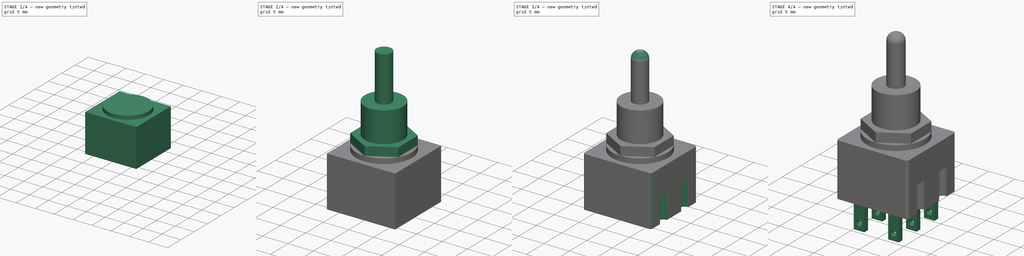
[diagram: build sequence overview — one tinted view per stage of 4, left to right]
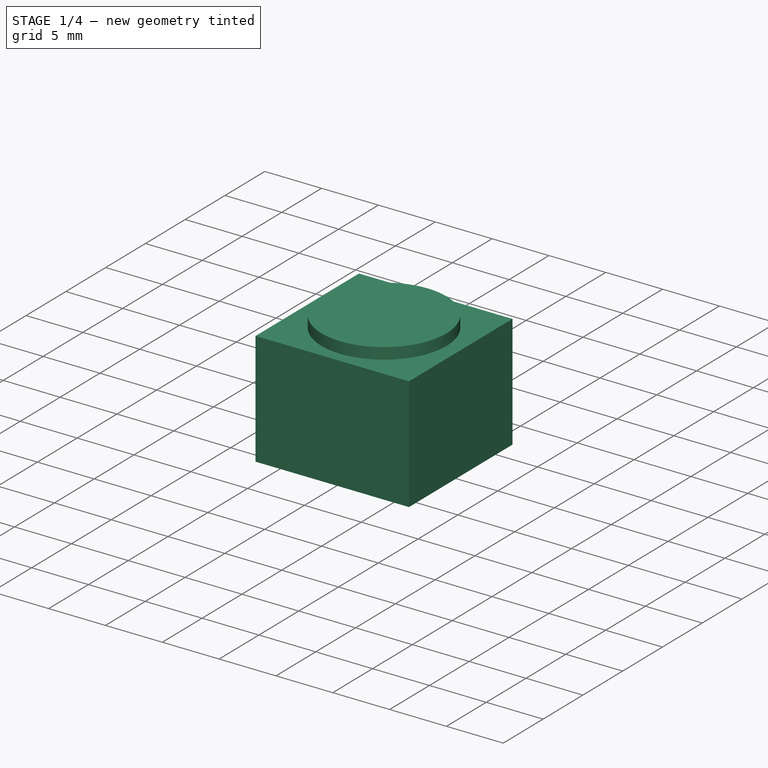
[diagram: stage 1 of 4 — iso view after this stage's code; geometry added in this stage tinted green]
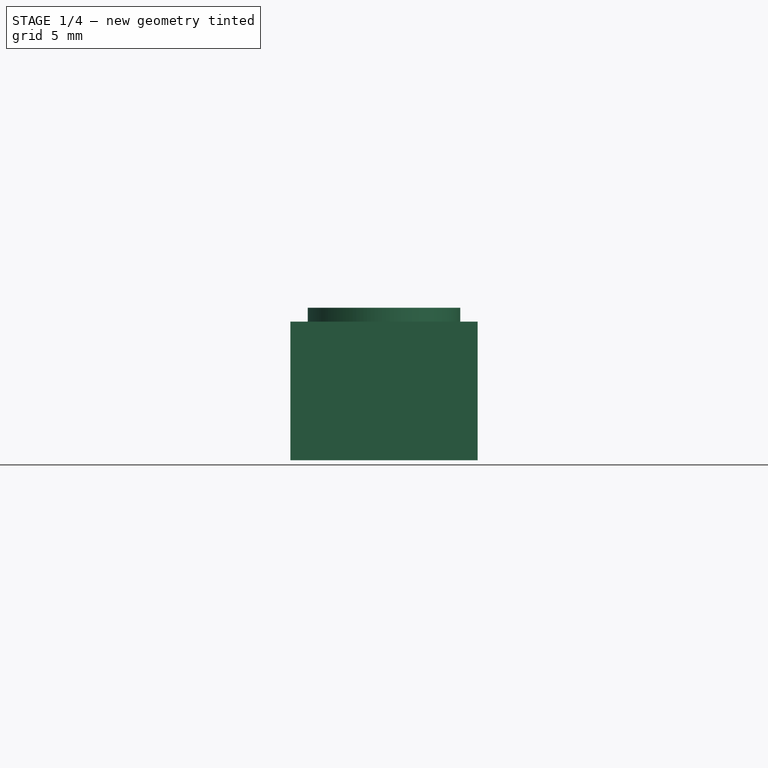
[diagram: stage 1 of 4 — front view after this stage's code; geometry added in this stage tinted green]
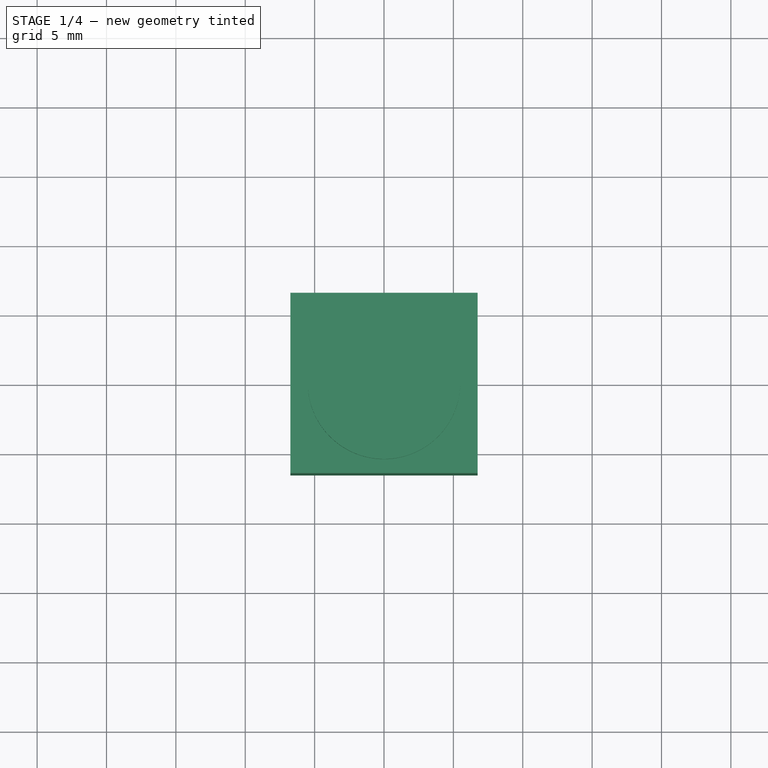
[diagram: stage 1 of 4 — top view after this stage's code; geometry added in this stage tinted green]
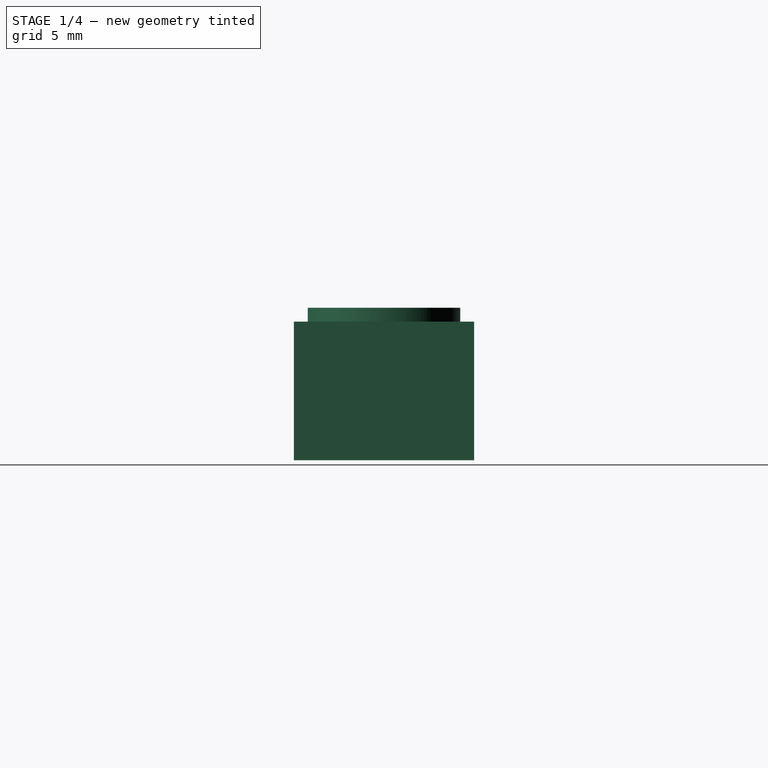
[diagram: stage 1 of 4 — right view after this stage's code; geometry added in this stage tinted green]
FCSTD DOCUMENT  (FreeCAD 1.0R39109 (Git))
Label: switch_3s_6a
License: All rights reserved
LicenseURL: https://en.wikipedia.org/wiki/All_rights_reserved
objects: Sketcher::SketchObject×8, PartDesign::Pad×6, PartDesign::Fillet×2, PartDesign::Pocket×2, PartDesign::Body×1
note: 47 computed .brp shape members not serialized (recipe doc carries the construction recipe); baked Part::Feature solids carry a one-line shape summary decoded from their .brp

FEATURE [Sketcher::SketchObject] Sketch
  ArcFitTolerance = 1e-06
  AttachmentSupport = -> [XY_Plane]
  FullyConstrained = true
  MakeInternals = false
  MapMode = 5
  sketch-geometry (5):
    g0: LineSegment StartX=-6.75 StartY=6.5 StartZ=0 EndX=-6.75 EndY=-6.5 EndZ=0
    g1: LineSegment StartX=-6.75 StartY=-6.5 StartZ=0 EndX=6.75 EndY=-6.5 EndZ=0
    g2: LineSegment StartX=6.75 StartY=-6.5 StartZ=0 EndX=6.75 EndY=6.5 EndZ=0
    g3: LineSegment StartX=6.75 StartY=6.5 StartZ=0 EndX=-6.75 EndY=6.5 EndZ=0
    g4: GeomPoint [constr] X=0 Y=0 Z=0
  constraints (12):
    c: Coincident(g0,g1)
    c: Coincident(g1,g2)
    c: Coincident(g2,g3)
    c: Coincident(g3,g0)
    c: Vertical(g0)
    c: Vertical(g2)
    c: Horizontal(g1)
    c: Horizontal(g3)
    c: Symmetric(g2,g0,g4)
    c: Coincident(g4,g-1)
    c: DistanceX(g3,g3) = 13.5
    c: DistanceY(g2,g2) = 13
FEATURE [PartDesign::Pad] Pad  label="BAsePad"
  Direction = (0,0,1)
  Length = 10
  Length2 = 10
  Profile = -> Sketch
  ReferenceAxis = -> Sketch [N_Axis]
  Refine = true
  Suppressed = false
  Type = 0
FEATURE [Sketcher::SketchObject] Sketch001
  ArcFitTolerance = 1e-06
  AttachmentSupport = -> [Pad]
  FullyConstrained = true
  MakeInternals = false
  MapMode = 5
  Placement = pos=(0,0,10) rot=(0,0,1;0rad)
  sketch-geometry (1):
    g0: Circle CenterX=0 CenterY=0 CenterZ=0 NormalX=0 NormalY=0 NormalZ=1 AngleXU=0 Radius=5.5
  constraints (2):
    c: Coincident(g0,g-1)
    c: Radius(g0) = 5.5
FEATURE [PartDesign::Pad] Pad001  label="BaseSWitchPad"
  BaseFeature = -> Pad
  Direction = (0,0,1)
  Length = 1
  Length2 = 10
  Profile = -> Sketch001
  ReferenceAxis = -> Sketch001 [N_Axis]
  Refine = true
  Suppressed = false
  Type = 0
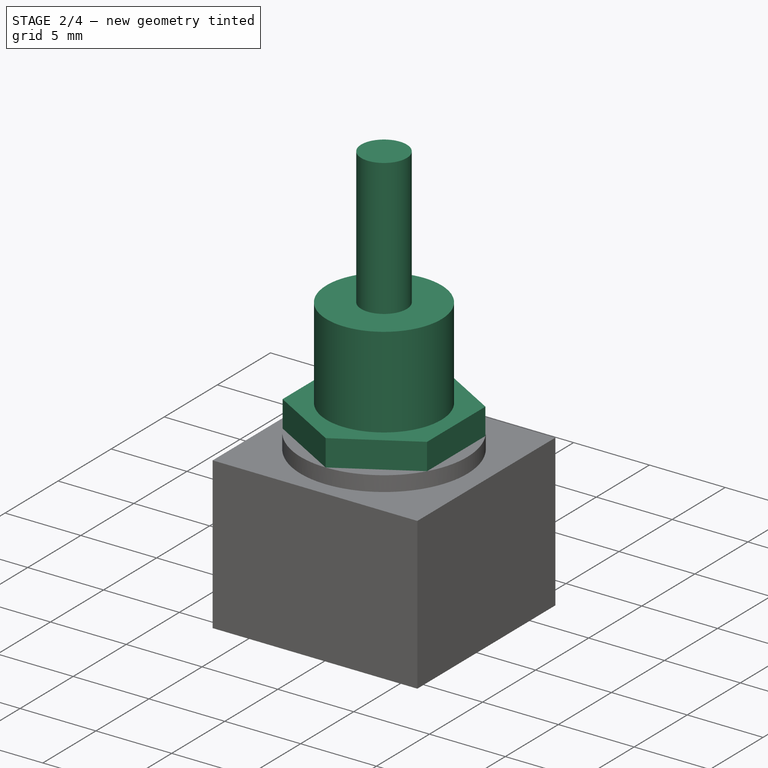
[diagram: stage 2 of 4 — iso view after this stage's code; geometry added in this stage tinted green]
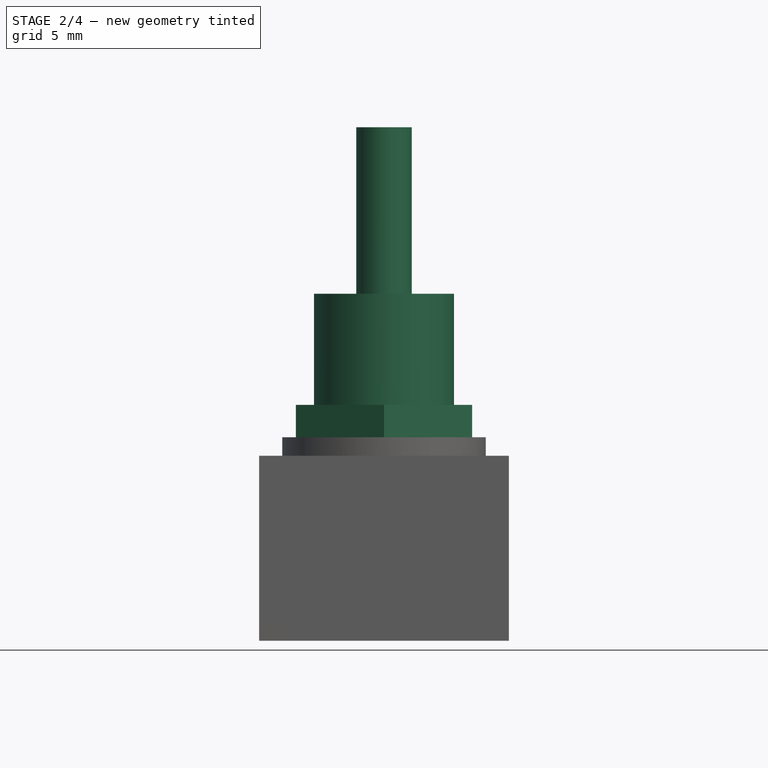
[diagram: stage 2 of 4 — front view after this stage's code; geometry added in this stage tinted green]
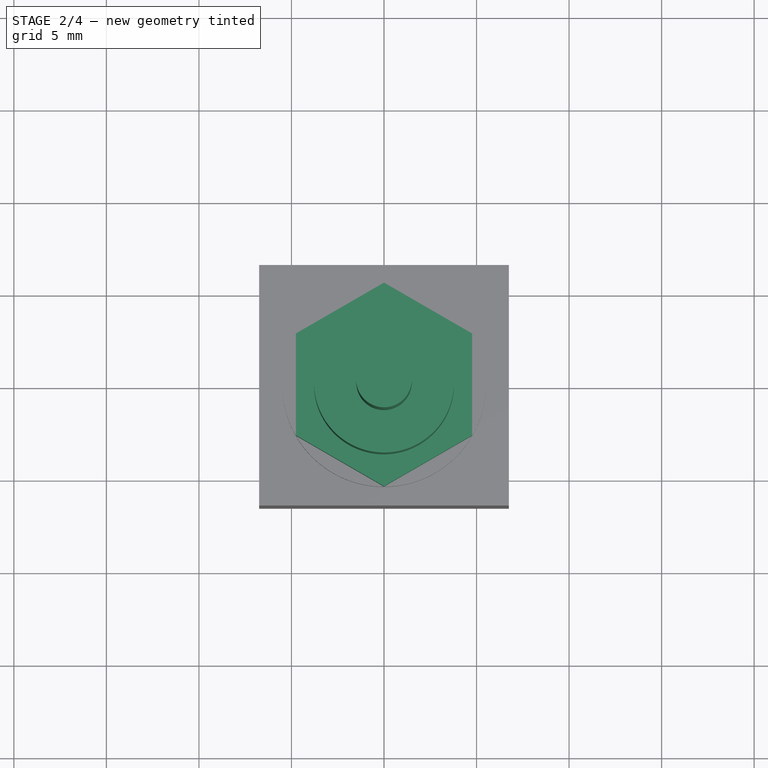
[diagram: stage 2 of 4 — top view after this stage's code; geometry added in this stage tinted green]
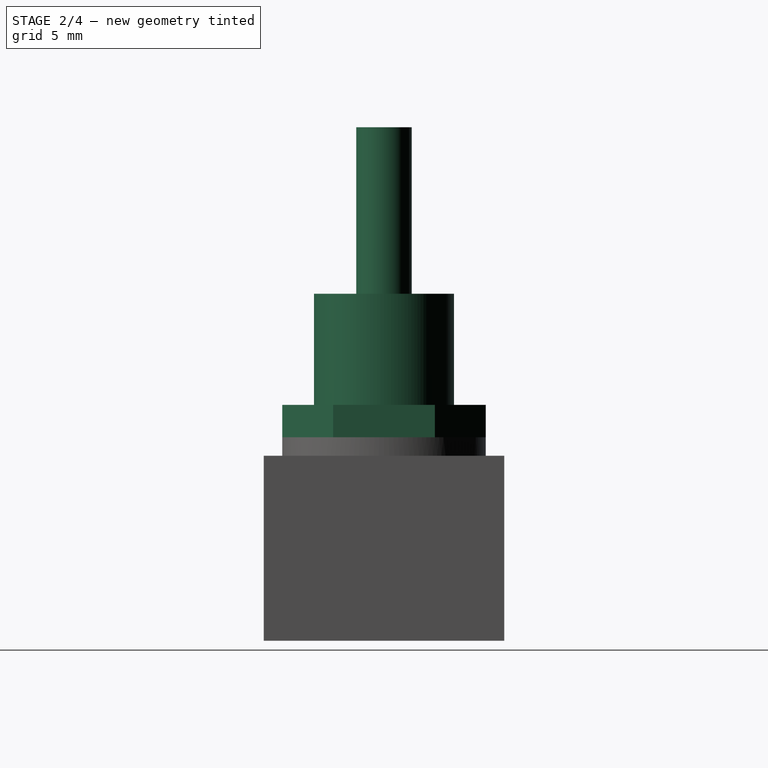
[diagram: stage 2 of 4 — right view after this stage's code; geometry added in this stage tinted green]
FEATURE [Sketcher::SketchObject] Sketch002
  ArcFitTolerance = 1e-06
  AttachmentSupport = -> [Pad001]
  ExternalGeometry = -> [Pad001]
  FullyConstrained = true
  MakeInternals = false
  MapMode = 5
  Placement = pos=(0,0,11) rot=(0,0,1;0rad)
  sketch-geometry (7):
    g0: LineSegment StartX=4.76314 StartY=-2.75 StartZ=0 EndX=4.76314 EndY=2.75 EndZ=0
    g1: LineSegment StartX=4.76314 StartY=2.75 StartZ=0 EndX=-1.87e-14 EndY=5.5 EndZ=0
    g2: LineSegment StartX=-1.85e-14 StartY=5.5 StartZ=0 EndX=-4.76314 EndY=2.75 EndZ=0
    g3: LineSegment StartX=-4.76314 StartY=2.75 StartZ=0 EndX=-4.76314 EndY=-2.75 EndZ=0
    g4: LineSegment StartX=-4.76314 StartY=-2.75 StartZ=0 EndX=5.3e-15 EndY=-5.5 EndZ=0
    g5: LineSegment StartX=5.4e-15 StartY=-5.5 StartZ=0 EndX=4.76314 EndY=-2.75 EndZ=0
    g6: Circle [constr] CenterX=0 CenterY=0 CenterZ=0 NormalX=0 NormalY=0 NormalZ=1 AngleXU=0 Radius=5.5
  constraints (16):
    c: Coincident(g0,g1)
    c: Coincident(g1,g2)
    c: Coincident(g2,g3)
    c: Coincident(g3,g4)
    c: Coincident(g4,g5)
    c: Coincident(g5,g0)
    c: Equal(g0, g1-g5) x5
    c: PointOnObject(g0,g6)
    c: PointOnObject(g1,g6)
    c: PointOnObject(g2,g6)
    c: PointOnObject(g3,g6)
    c: PointOnObject(g4,g6)
    c: PointOnObject(g5,g6)
    c: Coincident(g6,g-1)
    c: Vertical(g0)
    c: PointOnObject(g0,g-3)
FEATURE [PartDesign::Pad] Pad002  label="NutPad"
  BaseFeature = -> Pad001
  Direction = (0,0,1)
  Length = 1.75
  Length2 = 10
  Profile = -> Sketch002
  ReferenceAxis = -> Sketch002 [N_Axis]
  Refine = true
  Suppressed = false
  Type = 0
FEATURE [Sketcher::SketchObject] Sketch003
  ArcFitTolerance = 1e-06
  AttachmentSupport = -> [Pad002]
  FullyConstrained = true
  MakeInternals = false
  MapMode = 5
  Placement = pos=(0,0,12.75) rot=(0,0,1;0rad)
  sketch-geometry (1):
    g0: Circle CenterX=0 CenterY=0 CenterZ=0 NormalX=0 NormalY=0 NormalZ=1 AngleXU=0 Radius=3.785
  constraints (2):
    c: Coincident(g0,g-1)
    c: Radius(g0) = 3.785
FEATURE [PartDesign::Pad] Pad003  label="SwitchExtensionPad"
  BaseFeature = -> Pad002
  Direction = (0,0,1)
  Length = 6
  Length2 = 10
  Profile = -> Sketch003
  ReferenceAxis = -> Sketch003 [N_Axis]
  Refine = true
  Suppressed = false
  Type = 0
FEATURE [Sketcher::SketchObject] Sketch004
  ArcFitTolerance = 1e-06
  AttachmentSupport = -> [Pad003]
  FullyConstrained = true
  MakeInternals = false
  MapMode = 5
  Placement = pos=(0,0,18.75) rot=(0,0,1;0rad)
  sketch-geometry (1):
    g0: Circle CenterX=0 CenterY=0 CenterZ=0 NormalX=0 NormalY=0 NormalZ=1 AngleXU=0 Radius=1.5
  constraints (2):
    c: Coincident(g0,g-1)
    c: Radius(g0) = 1.5
FEATURE [PartDesign::Pad] Pad004  label="SwitchExtensionPad2"
  BaseFeature = -> Pad003
  Direction = (0,0,1)
  Length = 9
  Length2 = 10
  Profile = -> Sketch004
  ReferenceAxis = -> Sketch004 [N_Axis]
  Refine = true
  Suppressed = false
  Type = 0
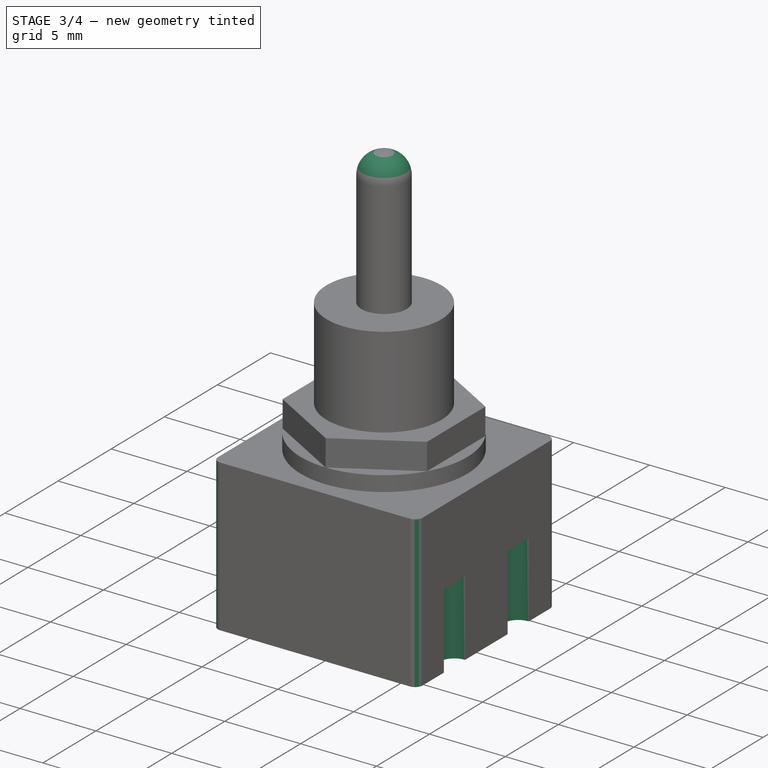
[diagram: stage 3 of 4 — iso view after this stage's code; geometry added in this stage tinted green]
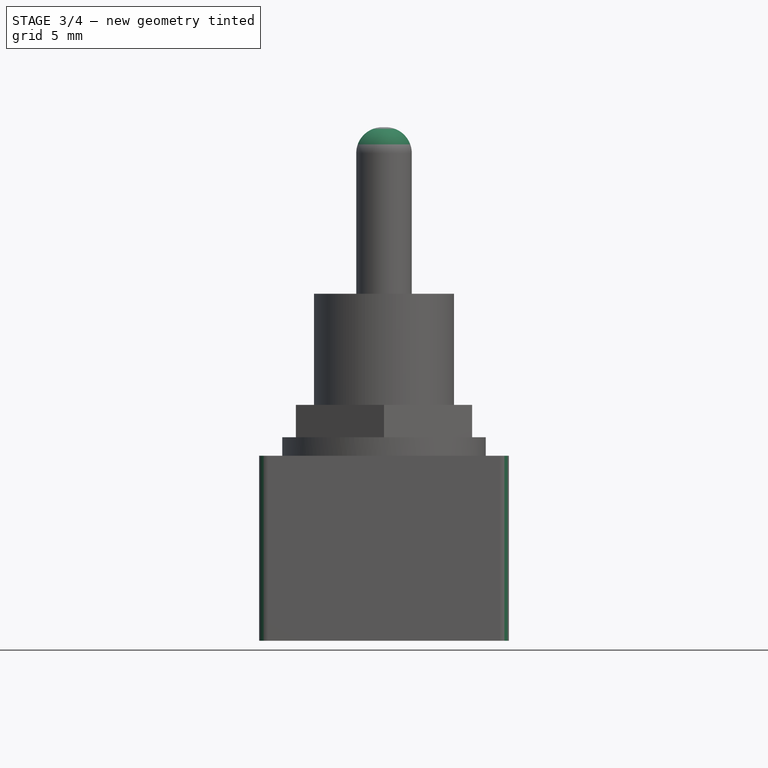
[diagram: stage 3 of 4 — front view after this stage's code; geometry added in this stage tinted green]
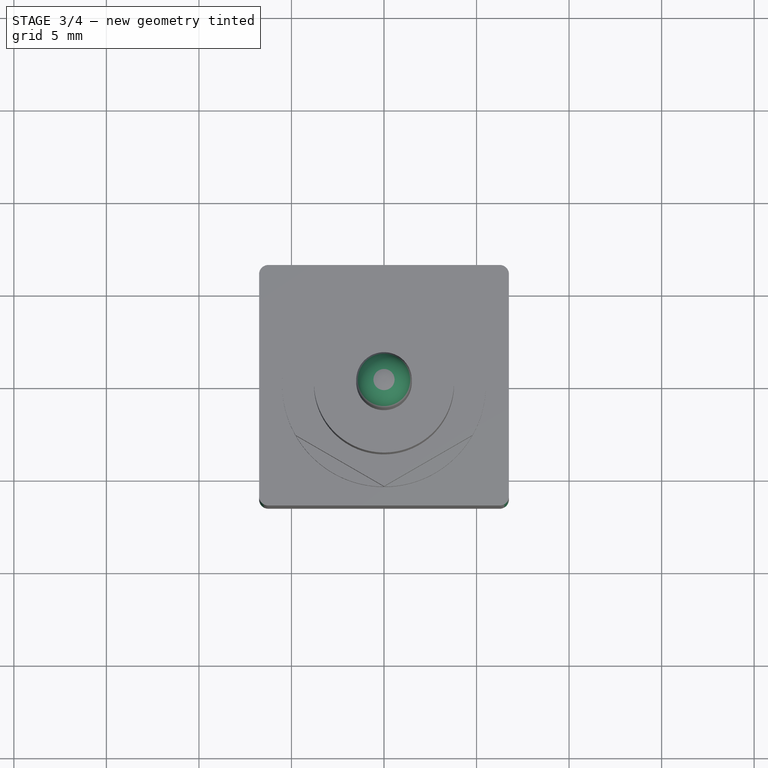
[diagram: stage 3 of 4 — top view after this stage's code; geometry added in this stage tinted green]
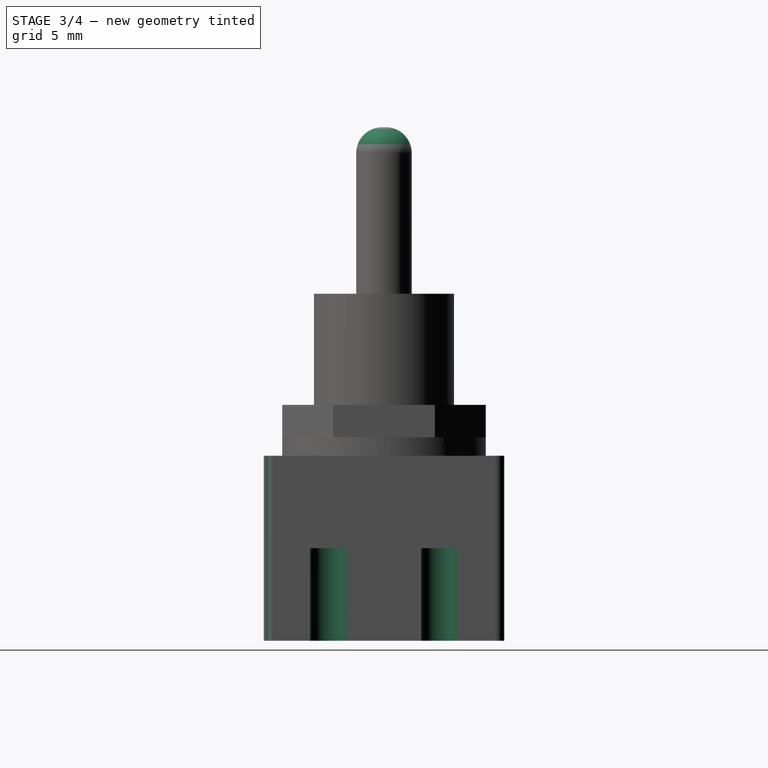
[diagram: stage 3 of 4 — right view after this stage's code; geometry added in this stage tinted green]
FEATURE [PartDesign::Fillet] Fillet  label="SwitchExtensionFillet"
  Base = -> Pad004 [Edge45]
  BaseFeature = -> Pad004
  Radius = 1.4
  Refine = true
  SupportTransform = false
  Suppressed = false
  UseAllEdges = false
FEATURE [PartDesign::Fillet] Fillet001  label="BaseFillet"
  Base = -> Fillet [Edge43,Edge45,Edge41,Edge40]
  BaseFeature = -> Fillet
  Radius = 0.5
  Refine = true
  SupportTransform = false
  Suppressed = false
  UseAllEdges = false
FEATURE [Sketcher::SketchObject] Sketch005
  ArcFitTolerance = 1e-06
  AttachmentSupport = -> [Fillet001]
  ExternalGeometry = -> [Fillet001]
  FullyConstrained = true
  MakeInternals = false
  MapMode = 5
  Placement = pos=(0,0,0) rot=(1,0,0;3.14159rad)
  sketch-geometry (10):
    g0: ArcOfCircle CenterX=-6.75 CenterY=3 CenterZ=0 NormalX=0 NormalY=0 NormalZ=1 AngleXU=0 Radius=1 StartAngle=4.71239 EndAngle=7.85398
    g1: LineSegment StartX=-6.75 StartY=4 StartZ=0 EndX=-6.75 EndY=2 EndZ=0
    g2: LineSegment [constr] StartX=0 StartY=0 StartZ=0 EndX=-5e-16 EndY=6 EndZ=0
    g3: GeomPoint X=-3e-16 Y=3 Z=0
    g4: ArcOfCircle CenterX=6.75 CenterY=3 CenterZ=0 NormalX=0 NormalY=0 NormalZ=1 AngleXU=0 Radius=1 StartAngle=1.57081 EndAngle=4.71239
    g5: LineSegment StartX=6.74999 StartY=4 StartZ=0 EndX=6.75 EndY=2 EndZ=0
    g6: ArcOfCircle CenterX=-6.75 CenterY=-3 CenterZ=0 NormalX=0 NormalY=0 NormalZ=1 AngleXU=0 Radius=1 StartAngle=4.71239 EndAngle=7.85398
    g7: LineSegment StartX=-6.75 StartY=-4 StartZ=0 EndX=-6.75 EndY=-2 EndZ=0
    g8: ArcOfCircle CenterX=6.75 CenterY=-3 CenterZ=0 NormalX=0 NormalY=0 NormalZ=1 AngleXU=0 Radius=1 StartAngle=1.5708 EndAngle=4.71239
    g9: LineSegment StartX=6.75 StartY=-4 StartZ=0 EndX=6.75 EndY=-2 EndZ=0
  constraints (25):
    c: PointOnObject(g0,g-3)
    c: PointOnObject(g0,g-3)
    c: PointOnObject(g0,g-3)
    c: Coincident(g1,g0)
    c: Coincident(g1,g0)
    c: Coincident(g2,g-1)
    c: Horizontal(g2,g-3)
    c: Symmetric(g2,g2,g3)
    c: Radius(g0) = 1
    c: Coincident(g5,g4)
    c: Coincident(g5,g4)
    c: Coincident(g7,g6)
    c: Coincident(g7,g6)
    c: Coincident(g9,g8)
    c: Coincident(g9,g8)
    c: Symmetric(g4,g0,g3)
    c: Symmetric(g8,g6,g-2)
    c: Symmetric(g6,g0,g-1)
    c: Symmetric(g8,g4,g-1)
    c: Symmetric(g4,g6,g2)
    c: Symmetric(g8,g0,g2)
    c: Symmetric(g6,g0,g-1)
    c: Vertical(g6,g0)
    c: Vertical(g4,g8)
    c: Horizontal(g4,g0)
FEATURE [PartDesign::Pocket] Pocket  label="BasePocket"
  BaseFeature = -> Fillet001
  Direction = (0,0,1)
  Length = 5
  Length2 = 5
  Profile = -> Sketch005
  ReferenceAxis = -> Sketch005 [N_Axis]
  Refine = true
  Suppressed = false
  Type = 0
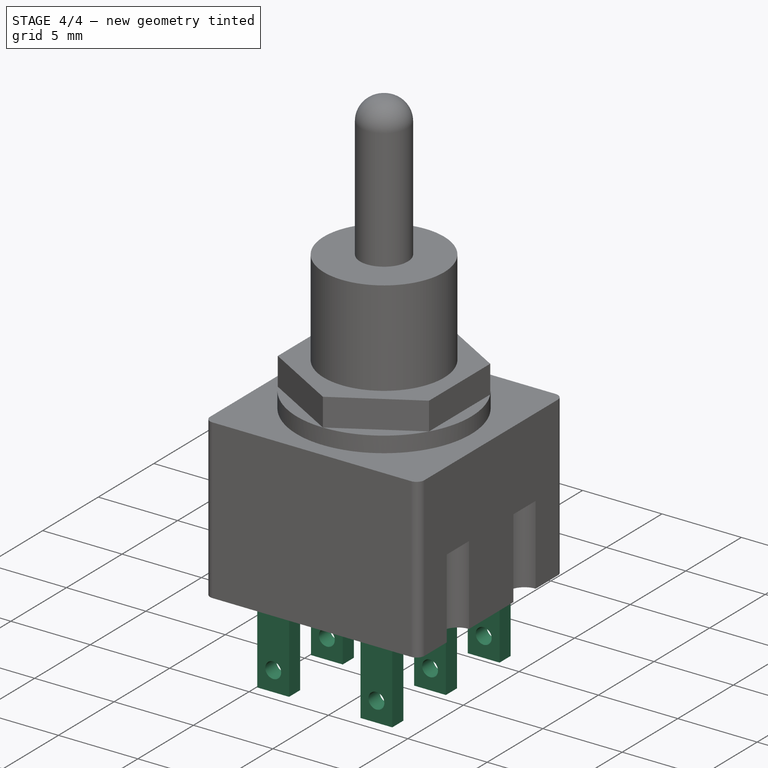
[diagram: stage 4 of 4 — iso view after this stage's code; geometry added in this stage tinted green]
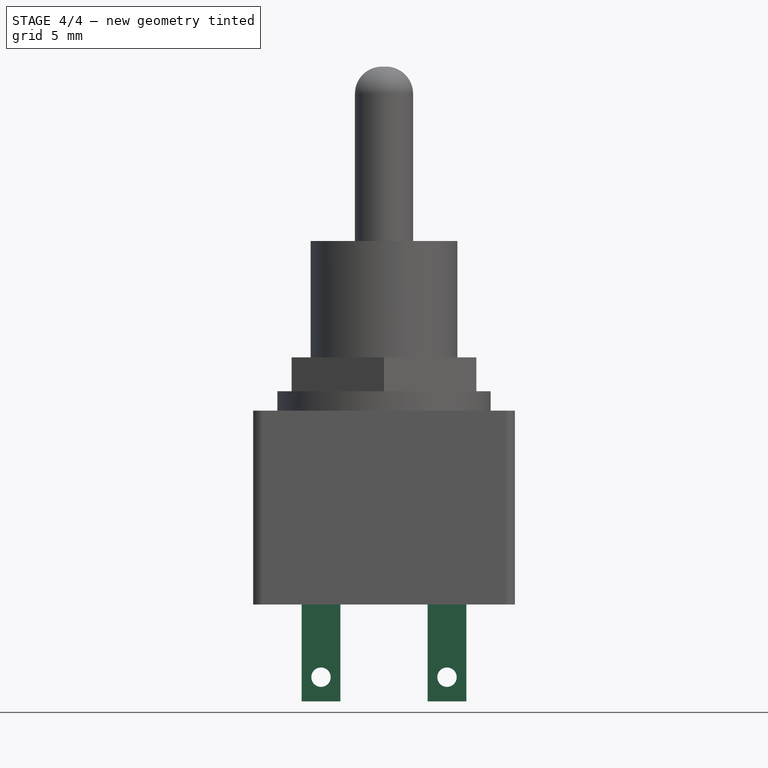
[diagram: stage 4 of 4 — front view after this stage's code; geometry added in this stage tinted green]
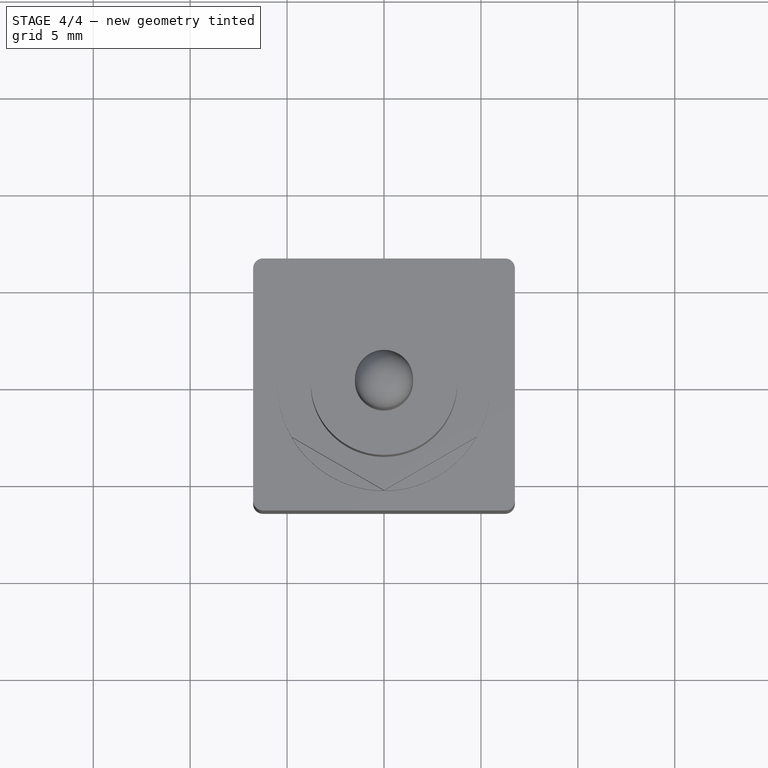
[diagram: stage 4 of 4 — top view after this stage's code; geometry added in this stage tinted green]
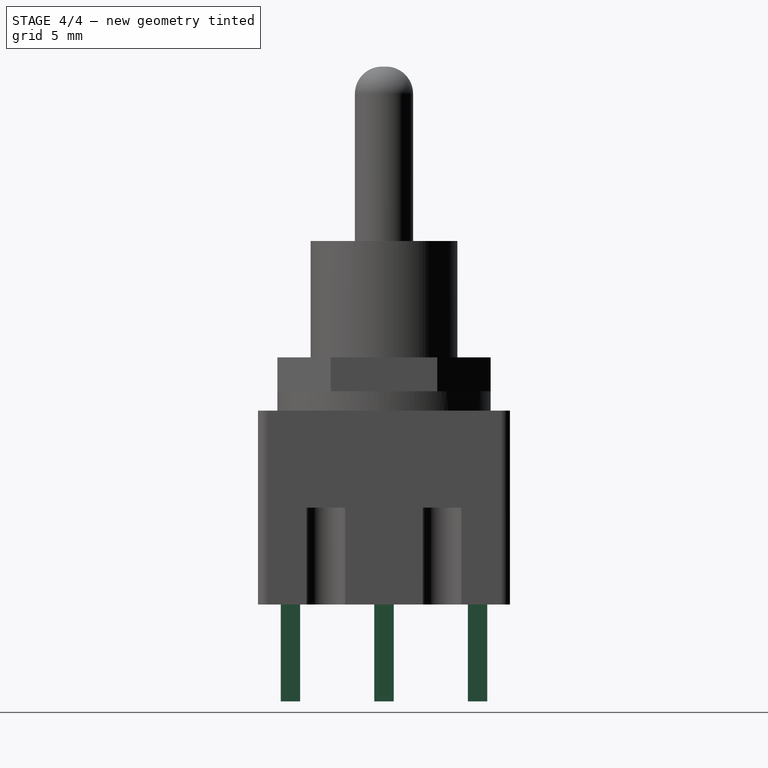
[diagram: stage 4 of 4 — right view after this stage's code; geometry added in this stage tinted green]
FEATURE [Sketcher::SketchObject] Sketch006
  ArcFitTolerance = 1e-06
  AttachmentSupport = -> [Pocket]
  FullyConstrained = true
  MakeInternals = false
  MapMode = 5
  Placement = pos=(0,0,0) rot=(1,0,0;3.14159rad)
  sketch-geometry (30):
    g0: LineSegment StartX=-4.25 StartY=5.325 StartZ=0 EndX=-4.25 EndY=4.325 EndZ=0
    g1: LineSegment StartX=-4.25 StartY=4.325 StartZ=0 EndX=-2.25 EndY=4.325 EndZ=0
    g2: LineSegment StartX=-2.25 StartY=4.325 StartZ=0 EndX=-2.25 EndY=5.325 EndZ=0
    g3: LineSegment StartX=-2.25 StartY=5.325 StartZ=0 EndX=-4.25 EndY=5.325 EndZ=0
    g4: GeomPoint [constr] X=-3.25 Y=4.825 Z=0
    g5: LineSegment StartX=-4.25 StartY=0.5 StartZ=0 EndX=-4.25 EndY=-0.5 EndZ=0
    g6: LineSegment StartX=-4.25 StartY=-0.5 StartZ=0 EndX=-2.25 EndY=-0.5 EndZ=0
    g7: LineSegment StartX=-2.25 StartY=-0.5 StartZ=0 EndX=-2.25 EndY=0.5 EndZ=0
    g8: LineSegment StartX=-2.25 StartY=0.5 StartZ=0 EndX=-4.25 EndY=0.5 EndZ=0
    g9: GeomPoint [constr] X=-3.25 Y=0 Z=0
    g10: LineSegment StartX=-4.25 StartY=-5.325 StartZ=0 EndX=-4.25 EndY=-4.325 EndZ=0
    g11: LineSegment StartX=-4.25 StartY=-4.325 StartZ=0 EndX=-2.25 EndY=-4.325 EndZ=0
    g12: LineSegment StartX=-2.25 StartY=-4.325 StartZ=0 EndX=-2.25 EndY=-5.325 EndZ=0
    g13: LineSegment StartX=-2.25 StartY=-5.325 StartZ=0 EndX=-4.25 EndY=-5.325 EndZ=0
    g14: GeomPoint [constr] X=-3.25 Y=-4.825 Z=0
    g15: LineSegment StartX=4.25 StartY=5.325 StartZ=0 EndX=4.25 EndY=4.325 EndZ=0
    g16: LineSegment StartX=4.25 StartY=4.325 StartZ=0 EndX=2.25 EndY=4.325 EndZ=0
    g17: LineSegment StartX=2.25 StartY=4.325 StartZ=0 EndX=2.25 EndY=5.325 EndZ=0
    g18: LineSegment StartX=2.25 StartY=5.325 StartZ=0 EndX=4.25 EndY=5.325 EndZ=0
    g19: GeomPoint [constr] X=3.25 Y=4.825 Z=0
    g20: LineSegment StartX=4.25 StartY=0.5 StartZ=0 EndX=4.25 EndY=-0.5 EndZ=0
    g21: LineSegment StartX=4.25 StartY=-0.5 StartZ=0 EndX=2.25 EndY=-0.5 EndZ=0
    g22: LineSegment StartX=2.25 StartY=-0.5 StartZ=0 EndX=2.25 EndY=0.5 EndZ=0
    g23: LineSegment StartX=2.25 StartY=0.5 StartZ=0 EndX=4.25 EndY=0.5 EndZ=0
    g24: GeomPoint [constr] X=3.25 Y=3e-16 Z=0
    g25: LineSegment StartX=4.25 StartY=-5.325 StartZ=0 EndX=4.25 EndY=-4.325 EndZ=0
    g26: LineSegment StartX=4.25 StartY=-4.325 StartZ=0 EndX=2.25 EndY=-4.325 EndZ=0
    g27: LineSegment StartX=2.25 StartY=-4.325 StartZ=0 EndX=2.25 EndY=-5.325 EndZ=0
    g28: LineSegment StartX=2.25 StartY=-5.325 StartZ=0 EndX=4.25 EndY=-5.325 EndZ=0
    g29: GeomPoint [constr] X=3.25 Y=-4.825 Z=0
  constraints (70):
    c: Coincident(g0,g1)
    c: Coincident(g1,g2)
    c: Coincident(g2,g3)
    c: Coincident(g3,g0)
    c: Vertical(g0)
    c: Vertical(g2)
    c: Horizontal(g1)
    c: Horizontal(g3)
    c: Symmetric(g2,g0,g4)
    c: Coincident(g5,g6)
    c: Coincident(g6,g7)
    c: Coincident(g7,g8)
    c: Coincident(g8,g5)
    c: Vertical(g5)
    c: Vertical(g7)
    c: Horizontal(g6)
    c: Horizontal(g8)
    c: Symmetric(g7,g5,g9)
    c: PointOnObject(g9,g-1)
    c: Vertical(g1,g7)
    c: Vertical(g5,g0)
    c: Equal(g0,g5)
    c: DistanceY(g2,g2) = 1
    c: DistanceX(g3,g3) = 2
    c: DistanceX(g4,g-1) = 3.25
    c: DistanceY(g7,g1) = 3.825
    c: Coincident(g10,g11)
    c: Coincident(g11,g12)
    c: Coincident(g12,g13)
    c: Coincident(g13,g10)
    c: Vertical(g10)
    c: Vertical(g12)
    c: Horizontal(g11)
    c: Horizontal(g13)
    c: Symmetric(g12,g10,g14)
    c: Coincident(g15,g16)
    c: Coincident(g16,g17)
    c: Coincident(g17,g18)
    c: Coincident(g18,g15)
    c: Vertical(g15)
    c: Vertical(g17)
    c: Horizontal(g16)
    c: Horizontal(g18)
    c: Symmetric(g17,g15,g19)
    c: Coincident(g20,g21)
    c: Coincident(g21,g22)
    c: Coincident(g22,g23)
    c: Coincident(g23,g20)
    c: Vertical(g20)
    c: Vertical(g22)
    c: Horizontal(g21)
    c: Horizontal(g23)
    c: Symmetric(g22,g20,g24)
    c: Coincident(g25,g26)
    c: Coincident(g26,g27)
    c: Coincident(g27,g28)
    c: Coincident(g28,g25)
    c: Vertical(g25)
    c: Vertical(g27)
    c: Horizontal(g26)
    c: Horizontal(g28)
    c: Symmetric(g27,g25,g29)
    c: Symmetric(g17,g2,g-2)
    c: Symmetric(g15,g0,g-2)
    c: Symmetric(g26,g11,g-2)
    c: Symmetric(g10,g25,g-2)
    c: Symmetric(g20,g5,g-2)
    c: Symmetric(g22,g7,g-2)
    c: Symmetric(g12,g2,g-1)
    c: Symmetric(g10,g0,g-1)
FEATURE [PartDesign::Pad] Pad005  label="TerminalPad"
  BaseFeature = -> Pocket
  Direction = (0,0,-1)
  Length = 5
  Length2 = 10
  Profile = -> Sketch006
  ReferenceAxis = -> Sketch006 [N_Axis]
  Refine = true
  Suppressed = false
  Type = 0
FEATURE [Sketcher::SketchObject] Sketch007
  ArcFitTolerance = 1e-06
  AttachmentSupport = -> [Pad005]
  ExternalGeometry = -> [Pad005]
  FullyConstrained = true
  MakeInternals = false
  MapMode = 5
  Placement = pos=(0,5.325,0) rot=(0,0.707107,0.707107;3.14159rad)
  sketch-geometry (4):
    g0: Circle CenterX=-3.25 CenterY=-3.75 CenterZ=0 NormalX=0 NormalY=0 NormalZ=1 AngleXU=0 Radius=0.5
    g1: Circle CenterX=3.25 CenterY=-3.75 CenterZ=0 NormalX=0 NormalY=0 NormalZ=1 AngleXU=0 Radius=0.5
    g2: GeomPoint X=3.25 Y=-5 Z=0
    g3: GeomPoint X=-3.25 Y=-5 Z=0
  constraints (8):
    c: Horizontal(g1,g0)
    c: Symmetric(g-4,g-4,g2)
    c: Symmetric(g-3,g-3,g3)
    c: Vertical(g0,g3)
    c: Vertical(g2,g1)
    c: DistanceY(g3,g0) = 1.25
    c: Radius(g0) = 0.5
    c: Equal(g0,g1)
FEATURE [PartDesign::Pocket] Pocket001  label="TerminalPocket"
  BaseFeature = -> Pad005
  Direction = (0,-1,2e-16)
  Length = 5
  Length2 = 5
  Profile = -> Sketch007
  ReferenceAxis = -> Sketch007 [N_Axis]
  Refine = true
  Suppressed = false
  Type = 1
FEATURE [PartDesign::Body] Body  label="switch_3s_6a"
  AllowCompound = false
  Group = -> [Sketch,Pad,Sketch001,Pad001,Sketch002,Pad002,Sketch003,Pad003,Sketch004,Pad004,Fillet,Fillet001,Sketch005,Pocket,Sketch006,Pad005,Sketch007,Pocket001]
  Origin = -> Origin
  Tip = -> Pocket001
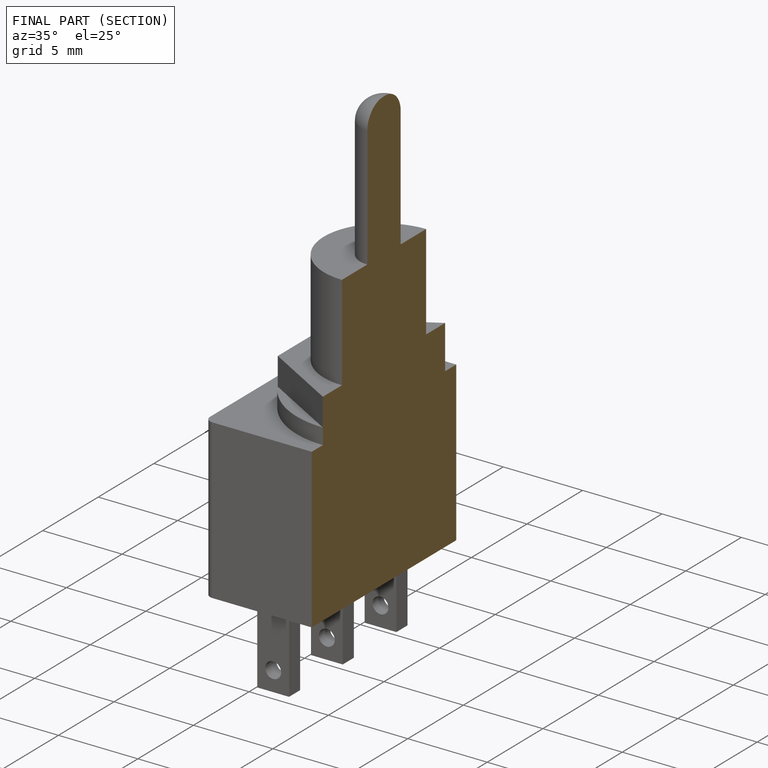
[diagram: finished part — half-section view (interior)]
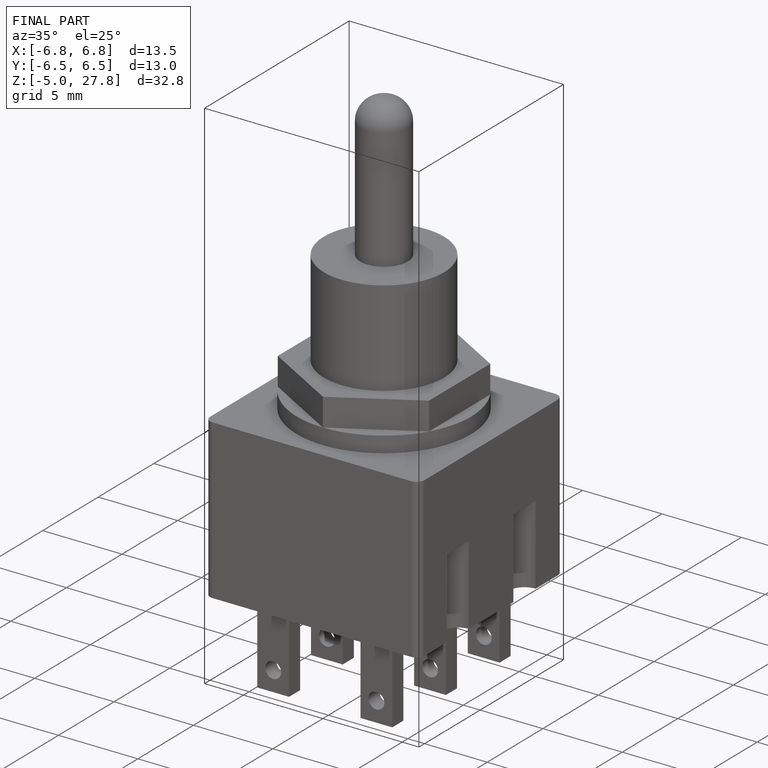
[diagram: finished part — iso view with bounding-box wireframe]
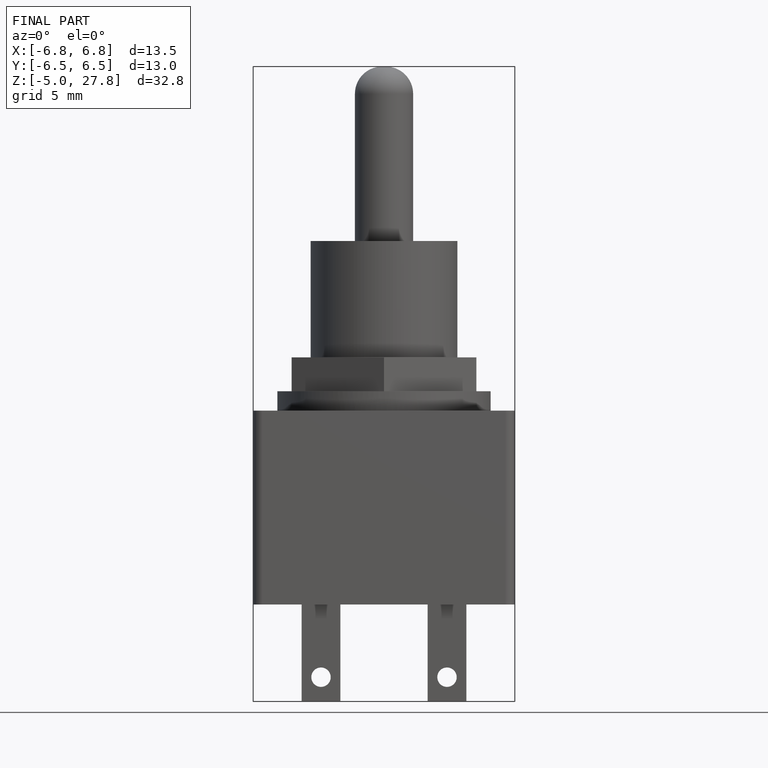
[diagram: finished part — front view with bounding-box wireframe]
